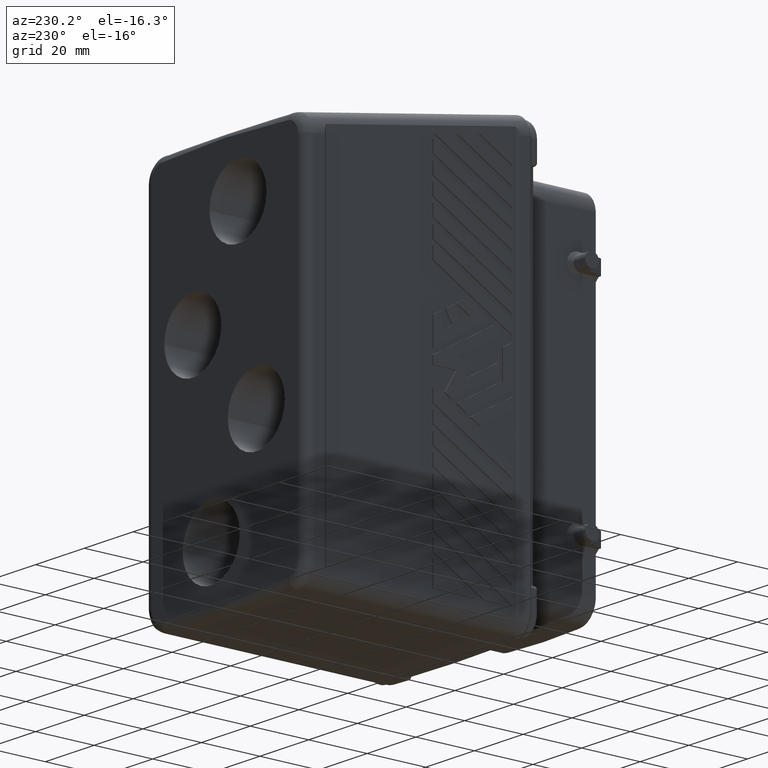
[diagram: clean part render]
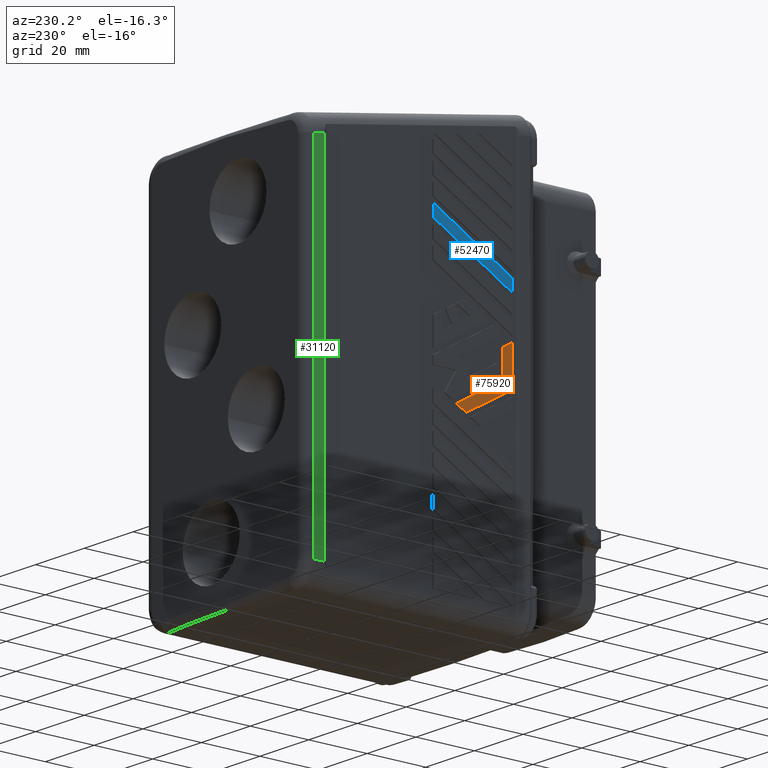
[diagram: same view with three faces highlighted in distinct colors, each labeled with its STEP entity id]
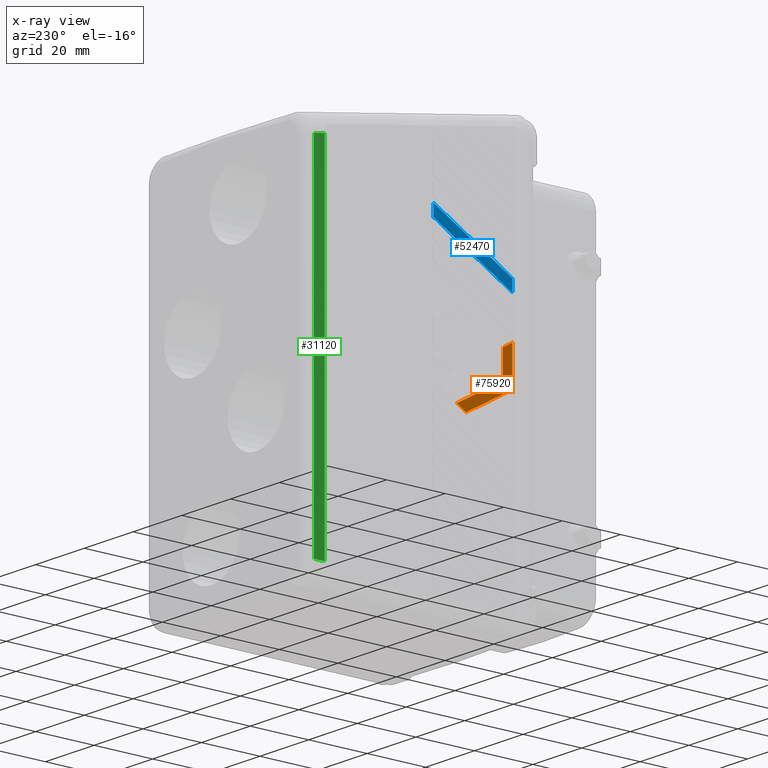
[diagram: x-ray of the same camera — body ghosted, the three highlighted faces saturated]
A machine part, auxiliary view with three faces highlighted in distinct colors.
The next image is the same camera in x-ray (body ghosted, the three faces saturated) — at least one of them is partly hidden behind the body in this view.
Their STEP definitions:

[orange] entity #75920 — the highlighted planar face has unit normal (-1, 0, 0).
#10100=CARTESIAN_POINT('',(13.7173127042286,61.0261850785397,
-7.53276881994));
#10110=VERTEX_POINT('',#10100);
#10140=CARTESIAN_POINT('',(13.7173127042299,8.51403473573514,
22.7851353162048));
#10150=DIRECTION('',(2.10979560099141E-14,-0.866025403784435,
0.500000000000006));
#10160=VECTOR('',#10150,1.);
#10170=LINE('',#10140,#10160);
#10180=CARTESIAN_POINT('',(13.7173127042282,76.8661850785397,
-16.6779970839038));
#10190=VERTEX_POINT('',#10180);
#10200=EDGE_CURVE('',#10190,#10110,#10170,.T.);
#62490=CARTESIAN_POINT('',(13.7173127042285,57.7861850785395,
-9.40338369211454));
#62500=VERTEX_POINT('',#62490);
#62530=CARTESIAN_POINT('',(13.7173127042289,57.7861850785397,0.));
#62540=DIRECTION('',(-4.22439860869872E-14,-1.53210777398272E-14,-1.));
#62550=VECTOR('',#62540,1.);
#62560=LINE('',#62530,#62550);
#62570=CARTESIAN_POINT('',(13.7173127042291,57.7861850785397,
3.4830743161981));
#62580=VERTEX_POINT('',#62570);
#62590=EDGE_CURVE('',#62580,#62500,#62560,.T.);
#73980=CARTESIAN_POINT('',(13.7173127042281,73.6261850785398,
-18.5486119560782));
#73990=VERTEX_POINT('',#73980);
#74020=CARTESIAN_POINT('',(13.7173127042298,5.27403473573391,
20.9145204440297));
#74030=DIRECTION('',(-2.10979560099135E-14,0.866025403784443,
-0.499999999999992));
#74040=VECTOR('',#74030,1.);
#74050=LINE('',#74020,#74040);
#74060=EDGE_CURVE('',#62500,#73990,#74050,.T.);
#75150=CARTESIAN_POINT('',(13.7173127042305,0.0129523975638648,
36.8384657565199));
#75160=DIRECTION('',(2.10979560099164E-14,-0.866025403784403,
0.500000000000062));
#75170=VECTOR('',#75160,1.);
#75180=LINE('',#75150,#75170);
#75190=CARTESIAN_POINT('',(13.717312704229,61.0261850785395,
1.6124594440235));
#75200=VERTEX_POINT('',#75190);
#75210=EDGE_CURVE('',#75200,#62580,#75180,.T.);
#75390=CARTESIAN_POINT('',(13.7173127042311,61.026185078538,
53.1030394523482));
#75400=DIRECTION('',(4.22439860869872E-14,-2.80886425230165E-14,1.));
#75410=VECTOR('',#75400,1.);
#75420=LINE('',#75390,#75410);
#75430=EDGE_CURVE('',#10110,#75200,#75420,.T.);
#75740=CARTESIAN_POINT('',(13.7173127042291,88.2639418921059,
5.4909581486866));
#75750=DIRECTION('',(-1.,2.77555756156163E-17,4.22439860869872E-14));
#75760=DIRECTION('',(2.11460300770734E-14,0.866025403784439,0.5));
#75770=AXIS2_PLACEMENT_3D('',#75740,#75750,#75760);
#75780=PLANE('',#75770);
#75790=ORIENTED_EDGE('',*,*,#62590,.F.);
#75800=ORIENTED_EDGE('',*,*,#74060,.F.);
#75810=CARTESIAN_POINT('',(13.7173127042282,76.8661850785397,
-16.6779970839038));
#75820=DIRECTION('',(-2.11460300770737E-14,-0.866025403784435,
-0.500000000000007));
#75830=VECTOR('',#75820,1.);
#75840=LINE('',#75810,#75830);
#75850=EDGE_CURVE('',#10190,#73990,#75840,.T.);
#75860=ORIENTED_EDGE('',*,*,#75850,.T.);
#75870=ORIENTED_EDGE('',*,*,#10200,.F.);
#75880=ORIENTED_EDGE('',*,*,#75430,.F.);
#75890=ORIENTED_EDGE('',*,*,#75210,.F.);
#75900=EDGE_LOOP('',(#75890,#75880,#75870,#75860,#75800,#75790));
#75910=FACE_OUTER_BOUND('',#75900,.T.);
#75920=ADVANCED_FACE('',(#75910),#75780,.T.);

[blue] entity #52470 — the highlighted planar face has unit normal (1, -0, -0).
#17290=CARTESIAN_POINT('',(13.7173127042297,57.7732326809805,
17.1687944973528));
#17300=VERTEX_POINT('',#17290);
#17330=CARTESIAN_POINT('',(13.7173127042291,57.7732326809805,
1.97000000000277));
#17340=DIRECTION('',(-4.20886732018365E-14,2.14213244519121E-15,-1.));
#17350=VECTOR('',#17340,1.);
#17360=LINE('',#17330,#17350);
#17370=CARTESIAN_POINT('',(13.7173127042299,57.7732326809805,
21.1178703386098));
#17380=VERTEX_POINT('',#17370);
#17390=EDGE_CURVE('',#17380,#17300,#17360,.T.);
#35570=CARTESIAN_POINT('',(13.7173127042305,84.7732326809808,
36.7063276067301));
#35580=VERTEX_POINT('',#35570);
#35610=CARTESIAN_POINT('',(13.7173127042291,84.7732326809808,
1.97000000000277));
#35620=DIRECTION('',(-4.20886732018365E-14,3.15544362088405E-30,-1.));
#35630=VECTOR('',#35620,1.);
#35640=LINE('',#35610,#35630);
#35650=CARTESIAN_POINT('',(13.7173127042304,84.7732326809808,
32.757251765473));
#35660=VERTEX_POINT('',#35650);
#35670=EDGE_CURVE('',#35580,#35660,#35640,.T.);
#52260=CARTESIAN_POINT('',(13.717312704228,71.2732326809806,
-23.8102702410158));
#52270=DIRECTION('',(1.,-2.77555756156163E-17,-4.20886732018365E-14));
#52280=DIRECTION('',(-4.20886732018365E-14,1.17961196366423E-16,-1.));
#52290=AXIS2_PLACEMENT_3D('',#52260,#52270,#52280);
#52300=PLANE('',#52290);
#52310=ORIENTED_EDGE('',*,*,#17390,.F.);
#52320=CARTESIAN_POINT('',(13.7173127042283,0.,-16.1865969429664));
#52330=DIRECTION('',(2.10683736344981E-14,0.866025403784437,
0.500000000000003));
#52340=VECTOR('',#52330,1.);
#52350=LINE('',#52320,#52340);
#52360=EDGE_CURVE('',#17300,#35660,#52350,.T.);
#52370=ORIENTED_EDGE('',*,*,#52360,.F.);
#52380=ORIENTED_EDGE('',*,*,#35670,.T.);
#52390=CARTESIAN_POINT('',(13.7173127042285,0.,-12.2375211017093));
#52400=DIRECTION('',(2.10683736344981E-14,0.866025403784438,
0.500000000000002));
#52410=VECTOR('',#52400,1.);
#52420=LINE('',#52390,#52410);
#52430=EDGE_CURVE('',#17380,#35580,#52420,.T.);
#52440=ORIENTED_EDGE('',*,*,#52430,.T.);
#52450=EDGE_LOOP('',(#52440,#52380,#52370,#52310));
#52460=FACE_OUTER_BOUND('',#52450,.T.);
#52470=ADVANCED_FACE('',(#52460),#52300,.F.);

[green] entity #31120 — the highlighted planar face has unit normal (-1, -0, -0).
#3820=CARTESIAN_POINT('',(13.6173136543522,122.011828051194,
48.777202043759));
#3830=VERTEX_POINT('',#3820);
#3860=CARTESIAN_POINT('',(13.6173136543522,9.47522005119425,
68.6204423515711));
#3870=DIRECTION('',(0.,0.984807753012208,-0.173648177666931));
#3880=VECTOR('',#3870,1.);
#3890=LINE('',#3860,#3880);
#3900=CARTESIAN_POINT('',(13.6173136543522,125.749860699868,
48.1180860330287));
#3910=VERTEX_POINT('',#3900);
#3920=EDGE_CURVE('',#3830,#3910,#3890,.T.);
#30820=CARTESIAN_POINT('',(13.6173136543522,61.0118280511928,
-33.220830509766));
#30830=DIRECTION('',(-1.,-4.73434598938868E-63,-1.08830453535092E-48));
#30840=DIRECTION('',(-1.08830453535092E-48,0.,1.));
#30850=AXIS2_PLACEMENT_3D('',#30820,#30830,#30840);
#30860=PLANE('',#30850);
#30870=ORIENTED_EDGE('',*,*,#3920,.T.);
#30880=CARTESIAN_POINT('',(13.6173136543522,122.011828051198,
-3.22403720678512));
#30890=DIRECTION('',(-4.22079630078353E-14,8.32667268468867E-17,-1.));
#30900=VECTOR('',#30890,1.);
#30910=LINE('',#30880,#30900);
#30920=CARTESIAN_POINT('',(13.6173136543451,122.011828051214,
-68.4044855420491));
#30930=VERTEX_POINT('',#30920);
#30940=EDGE_CURVE('',#3830,#30930,#30910,.T.);
#30950=ORIENTED_EDGE('',*,*,#30940,.F.);
#30960=CARTESIAN_POINT('',(13.6173136543451,-1.49213974509621E-13,
-68.4044855420491));
#30970=DIRECTION('',(6.22460558025955E-31,1.,-6.12323399573677E-17));
#30980=VECTOR('',#30970,1.);
#30990=LINE('',#30960,#30980);
#31000=CARTESIAN_POINT('',(13.6173136543451,125.749860699868,
-68.4044855420491));
#31010=VERTEX_POINT('',#31000);
#31020=EDGE_CURVE('',#30930,#31010,#30990,.T.);
#31030=ORIENTED_EDGE('',*,*,#31020,.F.);
#31040=CARTESIAN_POINT('',(13.6173136543522,125.749860699868,
48.1180845743037));
#31050=DIRECTION('',(0.,-1.61294764294015E-15,1.));
#31060=VECTOR('',#31050,1.);
#31070=LINE('',#31040,#31060);
#31080=EDGE_CURVE('',#31010,#3910,#31070,.T.);
#31090=ORIENTED_EDGE('',*,*,#31080,.F.);
#31100=EDGE_LOOP('',(#31090,#31030,#30950,#30870));
#31110=FACE_OUTER_BOUND('',#31100,.T.);
#31120=ADVANCED_FACE('',(#31110),#30860,.T.);